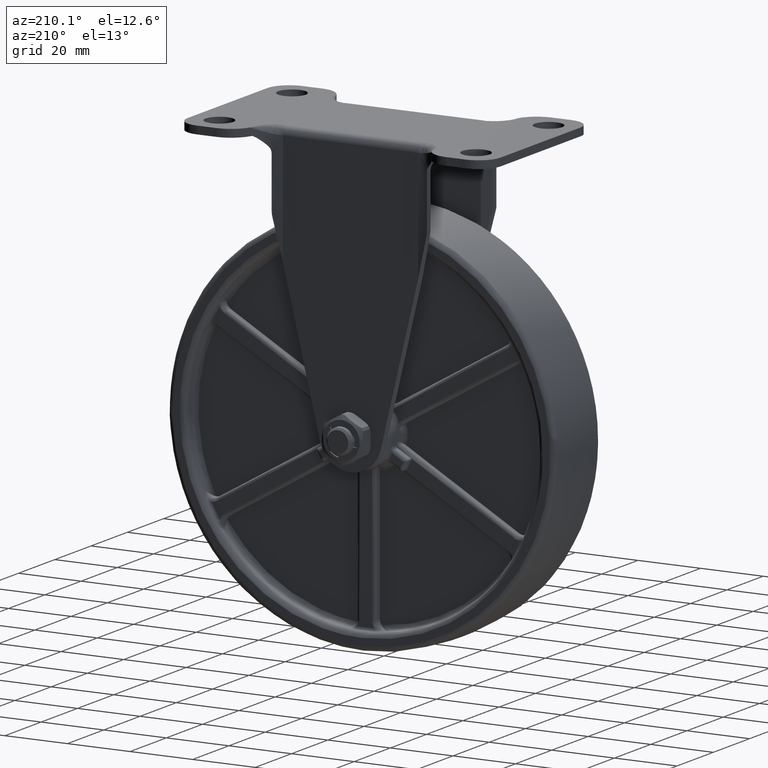
[diagram: clean part render]
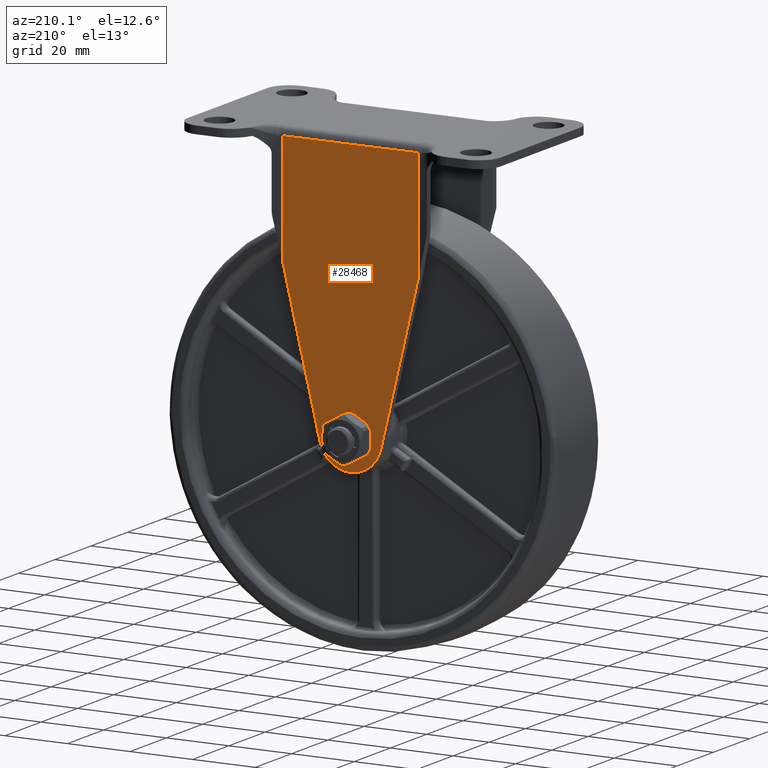
[diagram: same view with one face highlighted and labeled with its STEP entity id]
A machine part, auxiliary view. The second image highlights one B-rep face of the part: STEP entity #28468.
In plain terms, the highlighted face is a freeform B-spline surface patch.
Its self-contained STEP definition (entity closure, byte-faithful):
#25002=CARTESIAN_POINT('',(3.142508825357986,18.499980000000001,-2.474800655109547));
#25003=VERTEX_POINT('',#25002);
#25009=CARTESIAN_POINT('',(-4.0,18.499980000000001,0.0));
#25010=VERTEX_POINT('',#25009);
#25011=CARTESIAN_POINT('',(3.142508825357985,18.499980000000001,-2.474800655109547));
#25012=CARTESIAN_POINT('',(1.941377962195082,18.499980000000008,-4.000000000000001));
#25013=CARTESIAN_POINT('',(0.0,18.499980000000001,-4.0));
#25014=CARTESIAN_POINT('',(-4.000000000000000,18.499980000000004,-4.000000000000000));
#25015=CARTESIAN_POINT('',(-4.0,18.499980000000001,0.0));
#25023=(BOUNDED_CURVE()B_SPLINE_CURVE(2,(#25011,#25012,#25013,#25014,#25015),.UNSPECIFIED.,.F.,.U.)B_SPLINE_CURVE_WITH_KNOTS((3,2,3),(0.107127387018096,0.250000000000000,0.500000000000000),.UNSPECIFIED.)CURVE()GEOMETRIC_REPRESENTATION_ITEM()RATIONAL_B_SPLINE_CURVE((0.856547277544658,0.832614322013766,1.0,0.707106781186548,1.0))REPRESENTATION_ITEM(''));
#25024=EDGE_CURVE('',#25003,#25010,#25023,.T.);
#25026=CARTESIAN_POINT('',(2.650475086022573,18.499980000000001,2.995827401291192));
#25027=VERTEX_POINT('',#25026);
#25028=CARTESIAN_POINT('',(-4.0,18.499980000000001,0.0));
#25029=CARTESIAN_POINT('',(-4.000000000000000,18.499980000000004,4.000000000000000));
#25030=CARTESIAN_POINT('',(0.0,18.499980000000001,4.0));
#25031=CARTESIAN_POINT('',(1.515460536110762,18.499980000000001,4.000000000000000));
#25032=CARTESIAN_POINT('',(2.650475086022573,18.499980000000004,2.995827401291192));
#25040=(BOUNDED_CURVE()B_SPLINE_CURVE(2,(#25028,#25029,#25030,#25031,#25032),.UNSPECIFIED.,.F.,.U.)B_SPLINE_CURVE_WITH_KNOTS((3,2,3),(0.500000000000000,0.750000000000000,0.865779630607482),.UNSPECIFIED.)CURVE()GEOMETRIC_REPRESENTATION_ITEM()RATIONAL_B_SPLINE_CURVE((1.0,0.707106781186548,1.0,0.864355725273368,0.854350202721690))REPRESENTATION_ITEM(''));
#25041=EDGE_CURVE('',#25010,#25027,#25040,.T.);
#25117=CARTESIAN_POINT('',(4.0,18.499980000000001,0.0));
#25118=VERTEX_POINT('',#25117);
#25119=CARTESIAN_POINT('',(2.650475086022573,18.499980000000004,2.995827401291192));
#25120=CARTESIAN_POINT('',(4.0,18.499980000000001,1.801872715884731));
#25121=CARTESIAN_POINT('',(4.0,18.499980000000001,0.0));
#25129=(BOUNDED_CURVE()B_SPLINE_CURVE(2,(#25119,#25120,#25121),.UNSPECIFIED.,.F.,.U.)B_SPLINE_CURVE_WITH_KNOTS((3,3),(0.865779630607482,1.0),.UNSPECIFIED.)CURVE()GEOMETRIC_REPRESENTATION_ITEM()RATIONAL_B_SPLINE_CURVE((0.854350202721690,0.842751055913179,1.0))REPRESENTATION_ITEM(''));
#25130=EDGE_CURVE('',#25027,#25118,#25129,.T.);
#25132=CARTESIAN_POINT('',(4.0,18.499980000000001,0.0));
#25133=CARTESIAN_POINT('',(4.000000000000001,18.499979999999997,-1.385955952241319));
#25134=CARTESIAN_POINT('',(3.142508825357987,18.499979999999997,-2.474800655109547));
#25142=(BOUNDED_CURVE()B_SPLINE_CURVE(2,(#25132,#25133,#25134),.UNSPECIFIED.,.F.,.U.)B_SPLINE_CURVE_WITH_KNOTS((3,3),(0.0,0.107127387018096),.UNSPECIFIED.)CURVE()GEOMETRIC_REPRESENTATION_ITEM()RATIONAL_B_SPLINE_CURVE((1.0,0.874492459172781,0.856547277544659))REPRESENTATION_ITEM(''));
#25143=EDGE_CURVE('',#25118,#25003,#25142,.T.);
#26127=CARTESIAN_POINT('',(-21.590030418878950,18.499980000000001,83.0));
#26128=VERTEX_POINT('',#26127);
#26204=CARTESIAN_POINT('',(21.590029999999999,18.499980000000001,83.0));
#26205=VERTEX_POINT('',#26204);
#26219=CARTESIAN_POINT('',(-21.590030418878950,18.499980000000001,83.0));
#26220=CARTESIAN_POINT('',(21.590029999999999,18.499980000000001,83.0));
#26221=QUASI_UNIFORM_CURVE('',1,(#26219,#26220),.UNSPECIFIED.,.F.,.U.);
#26222=EDGE_CURVE('',#26128,#26205,#26221,.T.);
#27048=CARTESIAN_POINT('',(9.724006395502389,18.499980000000001,-2.333117345066995));
#27049=VERTEX_POINT('',#27048);
#27072=CARTESIAN_POINT('',(-9.724018100333170,18.499980000000001,-2.333117239733630));
#27073=VERTEX_POINT('',#27072);
#27079=CARTESIAN_POINT('',(9.724006395502389,18.499980000000001,-2.333117345066994));
#27080=CARTESIAN_POINT('',(7.884445989899220,18.499980000000004,-9.999968003760941));
#27081=CARTESIAN_POINT('',(-0.000005893940183,18.499980000000001,-9.999967961057587));
#27082=CARTESIAN_POINT('',(-7.884457777779587,18.499980000000004,-9.999967918354237));
#27083=CARTESIAN_POINT('',(-9.724018100333172,18.499980000000001,-2.333117239733629));
#27091=(BOUNDED_CURVE()B_SPLINE_CURVE(2,(#27079,#27080,#27081,#27082,#27083),.UNSPECIFIED.,.F.,.U.)B_SPLINE_CURVE_WITH_KNOTS((3,2,3),(0.0,0.500000000000000,1.0),.UNSPECIFIED.)CURVE()GEOMETRIC_REPRESENTATION_ITEM()RATIONAL_B_SPLINE_CURVE((1.0,0.785275408100328,1.0,0.785275408100328,1.0))REPRESENTATION_ITEM(''));
#27092=EDGE_CURVE('',#27049,#27073,#27091,.T.);
#27102=CARTESIAN_POINT('',(21.590029999999999,18.499980000000001,47.121649462871098));
#27103=VERTEX_POINT('',#27102);
#27139=CARTESIAN_POINT('',(21.590029999999999,18.499980000000001,47.121649462871098));
#27140=CARTESIAN_POINT('',(9.724006395502389,18.499980000000001,-2.333117345066995));
#27141=QUASI_UNIFORM_CURVE('',1,(#27139,#27140),.UNSPECIFIED.,.F.,.U.);
#27142=EDGE_CURVE('',#27103,#27049,#27141,.T.);
#27224=CARTESIAN_POINT('',(-21.590030418878950,18.499980000000001,47.121604892278498));
#27225=VERTEX_POINT('',#27224);
#27239=CARTESIAN_POINT('',(-9.724018100333170,18.499980000000001,-2.333117239733630));
#27240=CARTESIAN_POINT('',(-21.590030418878950,18.499980000000001,47.121604892278498));
#27241=QUASI_UNIFORM_CURVE('',1,(#27239,#27240),.UNSPECIFIED.,.F.,.U.);
#27242=EDGE_CURVE('',#27073,#27225,#27241,.T.);
#28048=CARTESIAN_POINT('',(21.590029999999999,18.499980000000001,47.121649462871098));
#28049=CARTESIAN_POINT('',(21.590029999999999,18.499980000000001,83.0));
#28050=QUASI_UNIFORM_CURVE('',1,(#28048,#28049),.UNSPECIFIED.,.F.,.U.);
#28051=EDGE_CURVE('',#27103,#26205,#28050,.T.);
#28088=CARTESIAN_POINT('',(-21.590030418878950,18.499980000000001,47.121604892278498));
#28089=CARTESIAN_POINT('',(-21.590030418878950,18.499980000000001,83.0));
#28090=QUASI_UNIFORM_CURVE('',1,(#28088,#28089),.UNSPECIFIED.,.F.,.U.);
#28091=EDGE_CURVE('',#27225,#26128,#28090,.T.);
#28449=CARTESIAN_POINT('',(-23.746874758454140,18.499980000000001,-14.645316180459810));
#28450=CARTESIAN_POINT('',(23.746875111694830,18.499980000000001,-14.645316180459810));
#28451=CARTESIAN_POINT('',(-23.746874758454140,18.499980000000001,87.645350713856331));
#28452=CARTESIAN_POINT('',(23.746875111694830,18.499980000000001,87.645350713856331));
#28453=B_SPLINE_SURFACE_WITH_KNOTS('',1,1,((#28449,#28451),(#28450,#28452)),.UNSPECIFIED.,.F.,.F.,.U.,(2,2),(2,2),(0.0,47.493749870148967),(0.0,102.290666894316100),.UNSPECIFIED.);
#28454=ORIENTED_EDGE('',*,*,#28091,.T.);
#28455=ORIENTED_EDGE('',*,*,#26222,.T.);
#28456=ORIENTED_EDGE('',*,*,#28051,.F.);
#28457=ORIENTED_EDGE('',*,*,#27142,.T.);
#28458=ORIENTED_EDGE('',*,*,#27092,.T.);
#28459=ORIENTED_EDGE('',*,*,#27242,.T.);
#28460=EDGE_LOOP('',(#28454,#28455,#28456,#28457,#28458,#28459));
#28461=FACE_OUTER_BOUND('',#28460,.T.);
#28462=ORIENTED_EDGE('',*,*,#25041,.F.);
#28463=ORIENTED_EDGE('',*,*,#25024,.F.);
#28464=ORIENTED_EDGE('',*,*,#25143,.F.);
#28465=ORIENTED_EDGE('',*,*,#25130,.F.);
#28466=EDGE_LOOP('',(#28462,#28463,#28464,#28465));
#28467=FACE_BOUND('',#28466,.T.);
#28468=ADVANCED_FACE('',(#28461,#28467),#28453,.F.);